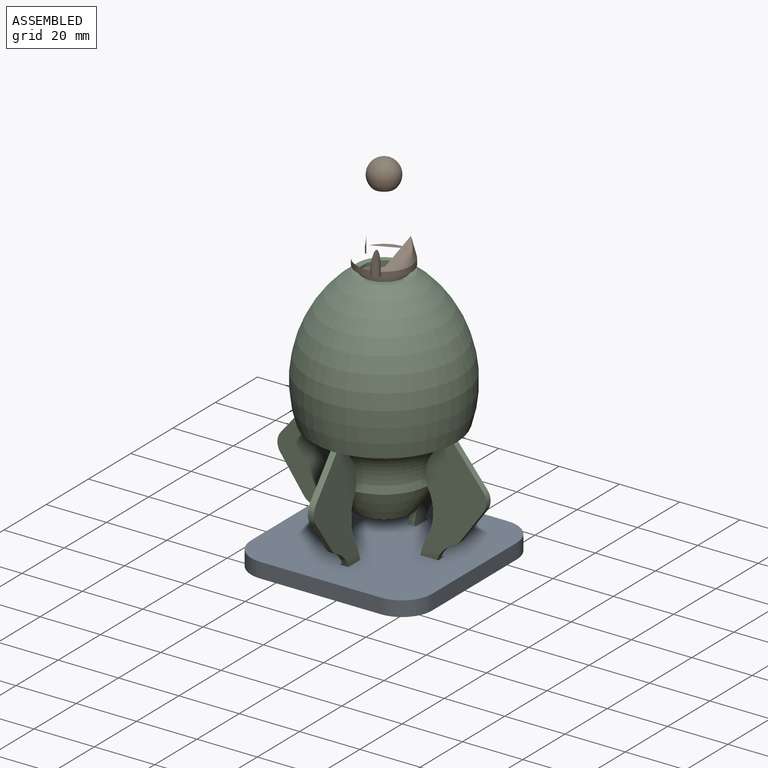
[diagram: assembled view]
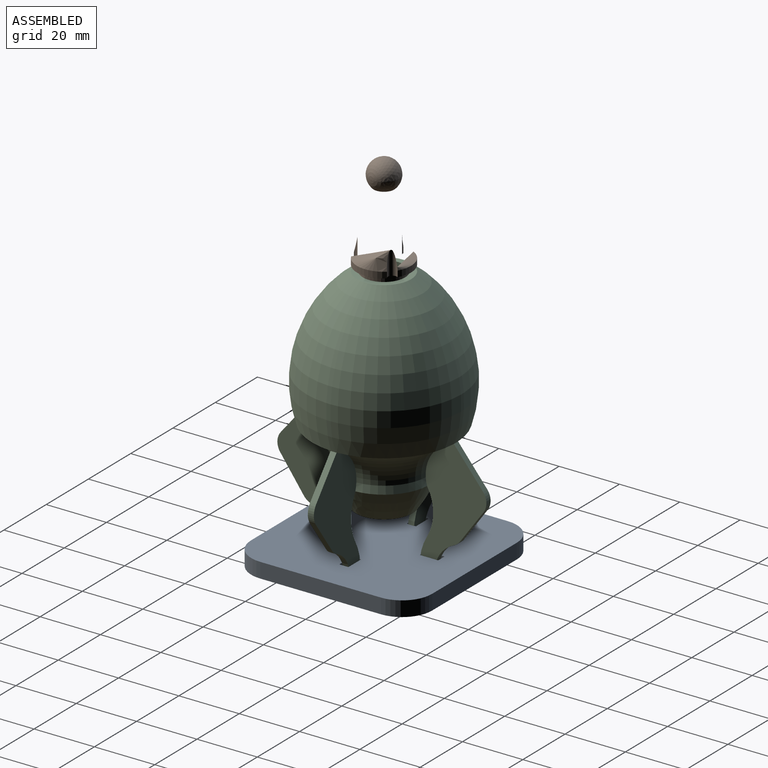
[diagram: assembled view, second angle]
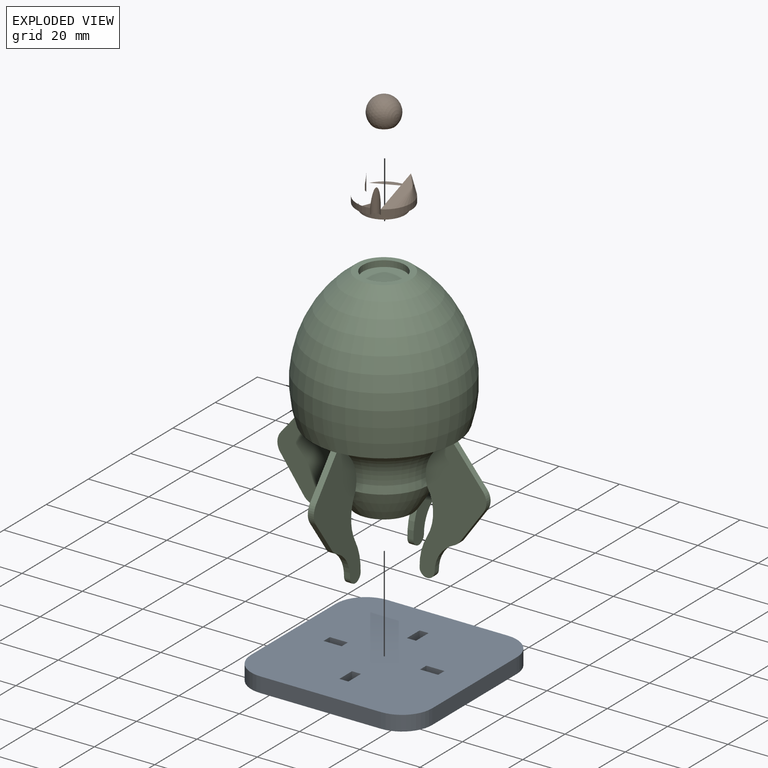
[diagram: exploded view]
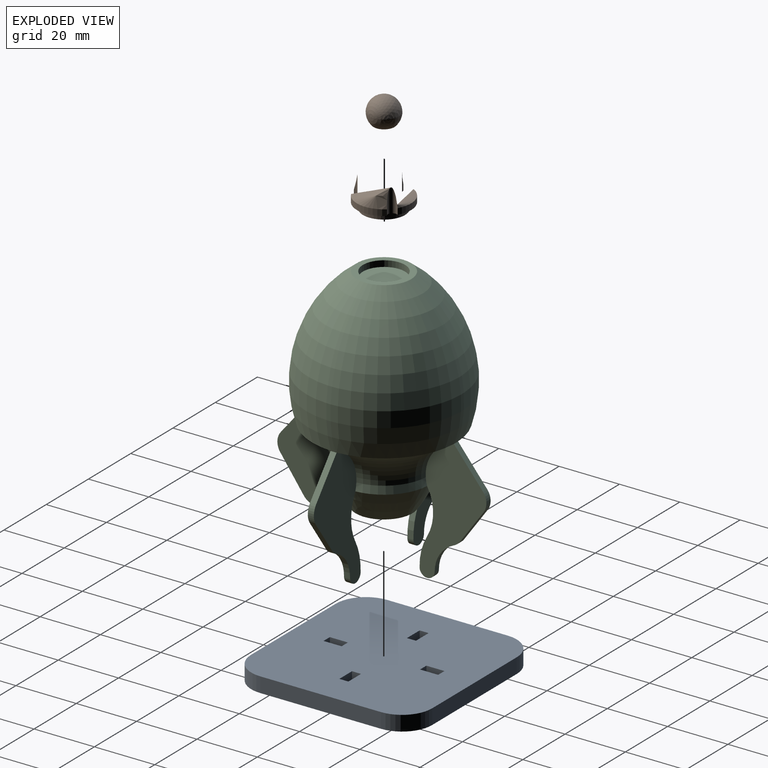
[diagram: exploded view, second angle]
ASSEMBLY  parts=3 mates=2
PART A: 28 faces, bbox 60x60x5 mm
  f0: plane 50x50mm, normal (0,0,1), area 1891.5mm2, adj f7,f12,f13,f14,f15,f16,f17,f18
  f1: plane 60x60mm, normal (0,0,-1), area 3442.2mm2, adj f2,f3,f4,f5,f8,f9,f10,f11
  f2: plane 40x5mm, normal (0,1,0), area 200mm2, adj f1,f6,f8,f11
  f3: plane 40x5mm, normal (-1,0,0), area 200mm2, adj f1,f6,f8,f9
  f4: plane 40x5mm, normal (0,-1,0), area 200mm2, adj f1,f6,f9,f10
  f5: plane 40x5mm, normal (1,0,0), area 200mm2, adj f1,f6,f10,f11
  f6: plane 60x60mm, normal (0,0,1), area 1550.7mm2, adj f2,f3,f4,f5,f7,f8,f9,f10
  f7: cylinder r=25mm len=50mm, axis (0,0,1), area 314.2mm2, adj f0,f6
  f8: cylinder r=10mm len=10mm, axis (0,0,1), area 78.5mm2, adj f1,f2,f3,f6
  f9: cylinder r=10mm len=10mm, axis (0,0,-1), area 78.5mm2, adj f1,f3,f4,f6
  f10: cylinder r=10mm len=10mm, axis (0,0,1), area 78.5mm2, adj f1,f4,f5,f6
  f11: cylinder r=10mm len=10mm, axis (0,0,-1), area 78.5mm2, adj f1,f2,f5,f6
  f12: plane 6x3mm, normal (0,-1,0), area 18mm2, adj f0,f1,f13,f15
  f13: plane 3x3mm, normal (1,0,0), area 9mm2, adj f0,f1,f12,f14
  f14: plane 6x3mm, normal (0,1,0), area 18mm2, adj f0,f1,f13,f15
  f15: plane 3x3mm, normal (-1,0,0), area 9mm2, adj f0,f1,f12,f14
  f16: plane 6x3mm, normal (1,0,0), area 18mm2, adj f0,f1,f17,f19
  f17: plane 3x3mm, normal (0,1,0), area 9mm2, adj f0,f1,f16,f18
  f18: plane 6x3mm, normal (-1,0,0), area 18mm2, adj f0,f1,f17,f19
  f19: plane 3x3mm, normal (0,-1,0), area 9mm2, adj f0,f1,f16,f18
  f20: plane 6x3mm, normal (0,1,0), area 18mm2, adj f0,f1,f21,f23
  f21: plane 3x3mm, normal (-1,0,0), area 9mm2, adj f0,f1,f20,f22
  f22: plane 6x3mm, normal (0,-1,0), area 18mm2, adj f0,f1,f21,f23
  f23: plane 3x3mm, normal (1,0,0), area 9mm2, adj f0,f1,f20,f22
  f24: plane 3x3mm, normal (0,1,0), area 9mm2, adj f0,f1,f25,f27
  f25: plane 6x3mm, normal (-1,0,0), area 18mm2, adj f0,f1,f24,f26
  f26: plane 3x3mm, normal (0,-1,0), area 9mm2, adj f0,f1,f25,f27
  f27: plane 6x3mm, normal (1,0,0), area 18mm2, adj f0,f1,f24,f26
PART B: 11 faces, bbox 18x18x34 mm
  f0: cylinder r=9mm len=12.02mm, axis (0,0,-1), area 31.7mm2, adj f2,f3,f8,f10
  f1: cylinder r=9mm len=12.02mm, axis (0,0,-1), area 31.7mm2, adj f2,f3,f9,f10
  f2: plane 18x17.88mm, normal (0,0,-1), area 90.3mm2, adj f0,f1,f4,f6,f8,f9,f10
  f3: cone r=9mm half-angle=14.6deg, axis (0,0,-1), area 822.7mm2, adj f0,f1,f6,f7,f8,f9,f10
  f4: cylinder r=7mm len=14mm, axis (0,0,-1), area 88mm2, adj f2,f5
  f5: plane 14x14mm, normal (0,0,-1), area 153.9mm2, adj f4
  f6: cylinder r=9mm len=13.88mm, axis (0,0,-1), area 31.7mm2, adj f2,f3,f8,f9
  f7: sphere r=5mm, area 271mm2, adj f3
  f8: cylinder r=1.5mm len=7.77mm, axis (0,0,-1), area 25.1mm2, adj f0,f2,f3,f6
  f9: cylinder r=1.5mm len=7.77mm, axis (0,0,-1), area 25.1mm2, adj f1,f2,f3,f6
  f10: cylinder r=1.5mm len=7.77mm, axis (0,0,-1), area 25.1mm2, adj f0,f1,f2,f3
PART C: 62 faces, bbox 69.3x69.3x87.5 mm
  f0: torus R=26.54mm, axis (0,0,-1), area 491.5mm2, adj f12,f46,f48,f50
  f1: cylinder r=15mm len=15mm, axis (-1,0,0), area 31.4mm2, adj f7,f12,f13,f46
  f2: plane 11.74x9.64mm, normal (0,-0.77,0.63), area 30.4mm2, adj f3,f11,f12,f13
  f3: cylinder r=5mm len=6.08mm, axis (-1,0,0), area 13.1mm2, adj f2,f4,f12,f13
  f4: plane 10.9x7.81mm, normal (0,-0.81,-0.58), area 26.8mm2, adj f3,f5,f12,f13
  f5: cylinder r=5mm len=2.09mm, axis (-1,0,0), area 5.4mm2, adj f4,f6,f12,f13
  f6: cylinder r=10.42mm len=9.57mm, axis (-1,0,0), area 24.3mm2, adj f5,f8,f12,f13
  f7: cylinder r=18.89mm len=10mm, axis (-1,0,0), area 20.9mm2, adj f1,f8,f12,f13
  f8: cylinder r=2.5mm len=5mm, axis (-1,0,0), area 15.7mm2, adj f6,f7,f12,f13
  f9: plane 1x0.02mm, normal (0,0,1), area 0mm2, adj f11,f13,f48
  f10: plane 1x0.02mm, normal (0,0,1), area 0mm2, adj f11,f12,f48
  f11: plane 2x0.02mm, normal (0,-0.86,-0.51), area 0mm2, adj f2,f9,f10,f12,f13
  f12: plane 42.5x22.15mm, normal (-1,0,0), area 483.7mm2, adj f0,f1,f2,f3,f4,f5,f6,f7
  f13: plane 42.5x22.15mm, normal (1,0,0), area 483.7mm2, adj f1,f2,f3,f4,f5,f6,f7,f8
  f14: torus R=26.54mm, axis (0,0,-1), area 491.5mm2, adj f13,f26,f46,f48
  f15: cylinder r=15mm len=15mm, axis (0,-1,0), area 31.4mm2, adj f21,f26,f27,f46
  f16: plane 11.74x9.64mm, normal (0.77,0,0.63), area 30.4mm2, adj f17,f25,f26,f27
  f17: cylinder r=5mm len=6.08mm, axis (0,-1,0), area 13.1mm2, adj f16,f18,f26,f27
  f18: plane 10.9x7.81mm, normal (0.81,0,-0.58), area 26.8mm2, adj f17,f19,f26,f27
  f19: cylinder r=5mm len=2.09mm, axis (0,-1,0), area 5.4mm2, adj f18,f20,f26,f27
  f20: cylinder r=10.42mm len=9.57mm, axis (0,-1,0), area 24.3mm2, adj f19,f22,f26,f27
  f21: cylinder r=18.89mm len=10mm, axis (0,-1,0), area 20.9mm2, adj f15,f22,f26,f27
  f22: cylinder r=2.5mm len=5mm, axis (0,-1,0), area 15.7mm2, adj f20,f21,f26,f27
  f23: plane 1x0.02mm, normal (0,0,1), area 0mm2, adj f25,f27,f48
  f24: plane 1x0.02mm, normal (0,0,1), area 0mm2, adj f25,f26,f48
  f25: plane 2x0.02mm, normal (0.86,0,-0.51), area 0mm2, adj f16,f23,f24,f26,f27
  f26: plane 42.5x22.15mm, normal (0,-1,0), area 483.7mm2, adj f14,f15,f16,f17,f18,f19,f20,f21
  f27: plane 42.5x22.15mm, normal (0,1,0), area 483.7mm2, adj f15,f16,f17,f18,f19,f20,f21,f22
  f28: torus R=26.54mm, axis (0,0,-1), area 491.5mm2, adj f27,f40,f46,f48
  f29: cylinder r=15mm len=15mm, axis (1,0,0), area 31.4mm2, adj f35,f40,f41,f46
  f30: plane 11.74x9.64mm, normal (0,0.77,0.63), area 30.4mm2, adj f31,f39,f40,f41
  f31: cylinder r=5mm len=6.08mm, axis (1,0,0), area 13.1mm2, adj f30,f32,f40,f41
  f32: plane 10.9x7.81mm, normal (0,0.81,-0.58), area 26.8mm2, adj f31,f33,f40,f41
  f33: cylinder r=5mm len=2.09mm, axis (1,0,0), area 5.4mm2, adj f32,f34,f40,f41
  f34: cylinder r=10.42mm len=9.57mm, axis (1,0,0), area 24.3mm2, adj f33,f36,f40,f41
  f35: cylinder r=18.89mm len=10mm, axis (1,0,0), area 20.9mm2, adj f29,f36,f40,f41
  f36: cylinder r=2.5mm len=5mm, axis (1,0,0), area 15.7mm2, adj f34,f35,f40,f41
  f37: plane 1x0.02mm, normal (0,0,1), area 0mm2, adj f39,f41,f48
  f38: plane 1x0.02mm, normal (0,0,1), area 0mm2, adj f39,f40,f48
  f39: plane 2x0.02mm, normal (0,0.86,-0.51), area 0mm2, adj f30,f37,f38,f40,f41
  f40: plane 42.5x22.15mm, normal (1,0,0), area 483.7mm2, adj f28,f29,f30,f31,f32,f33,f34,f35
  f41: plane 42.5x22.15mm, normal (-1,0,0), area 483.7mm2, adj f29,f30,f31,f32,f33,f34,f35,f36
  f42: plane 2x0.02mm, normal (-0.86,0,-0.51), area 0mm2, adj f49,f50,f51,f52,f53
  f43: plane 18x18mm, normal (0,0,1), area 100.5mm2, adj f44,f48
  f44: cylinder r=7mm len=14mm, axis (0,0,-1), area 88mm2, adj f43,f45
  f45: plane 14x14mm, normal (0,0,1), area 153.9mm2, adj f44
  f46: revolved ~29.93x29.93mm, area 1788.1mm2, adj f0,f1,f14,f15,f28,f29,f47,f58
  f47: torus R=26.54mm, axis (0,0,-1), area 491.5mm2, adj f41,f46,f48,f51
  f48: revolved ~51.64x51.64mm, area 13595.3mm2, adj f0,f9,f10,f14,f23,f24,f28,f37
  f49: plane 1x0.02mm, normal (0,0,1), area 0mm2, adj f42,f48,f50
  f50: plane 42.5x22.15mm, normal (0,-1,0), area 483.7mm2, adj f0,f42,f49,f53,f54,f55,f56,f57
  f51: plane 42.5x22.15mm, normal (0,1,0), area 483.7mm2, adj f42,f47,f52,f53,f54,f55,f56,f57
  f52: plane 1x0.02mm, normal (0,0,1), area 0mm2, adj f42,f48,f51
  f53: plane 11.74x9.64mm, normal (-0.77,0,0.63), area 30.4mm2, adj f42,f50,f51,f59
  f54: cylinder r=5mm len=2.09mm, axis (0,1,0), area 5.4mm2, adj f50,f51,f55,f60
  f55: cylinder r=10.42mm len=9.57mm, axis (0,1,0), area 24.3mm2, adj f50,f51,f54,f56
  f56: cylinder r=2.5mm len=5mm, axis (0,1,0), area 15.7mm2, adj f50,f51,f55,f57
  f57: cylinder r=18.89mm len=10mm, axis (0,1,0), area 20.9mm2, adj f50,f51,f56,f58
  f58: cylinder r=15mm len=15mm, axis (0,1,0), area 31.4mm2, adj f46,f50,f51,f57
  f59: cylinder r=5mm len=6.08mm, axis (0,1,0), area 13.1mm2, adj f50,f51,f53,f60
  f60: plane 10.9x7.81mm, normal (-0.81,0,-0.58), area 26.8mm2, adj f50,f51,f54,f59
  f61: plane 18.93x18.93mm, normal (0,0,-1), area 281.6mm2, adj f46
PLACE A rot(axis=(1,0,0),180deg) t=(0,0,-1)mm
PLACE B rot(axis=(0,0,-1),100.3deg) t=(0,0,80)mm
PLACE C at identity fixed
MATE fastened A.f7 <-> C.f0  axis (0,0,-1) through (0,0,-4)mm
MATE revolute B.f4 <-> C.f0  axis (0,0,-1) through (0,0,80)mm
